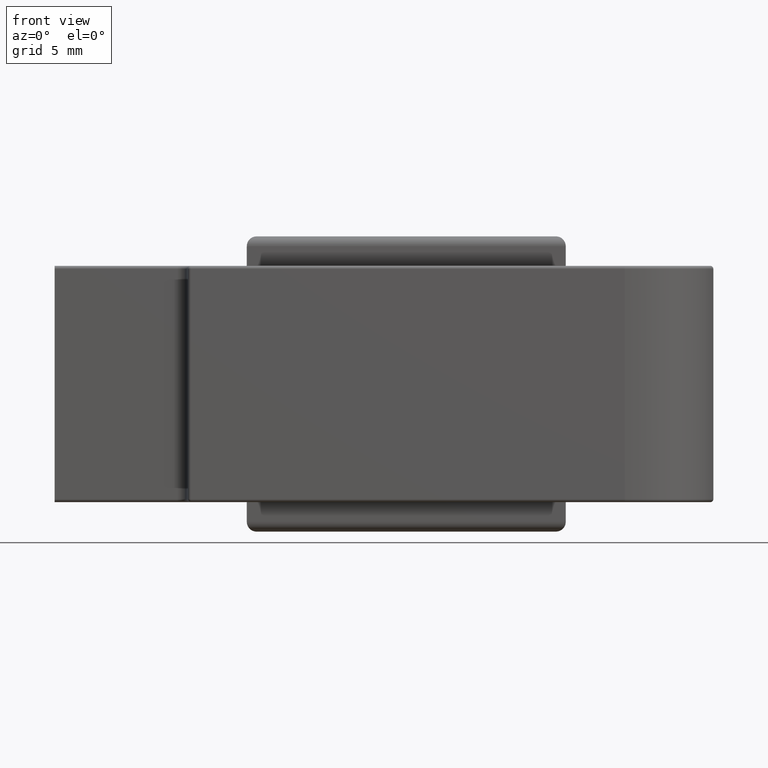
[diagram: clean part render]
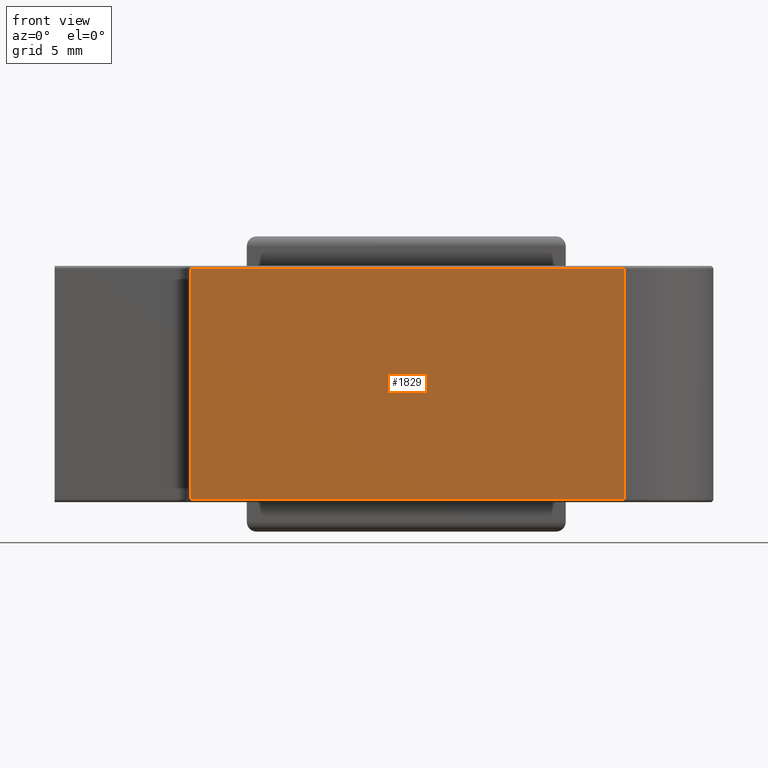
[diagram: same view with one face highlighted and labeled with its STEP entity id]
A machine part, front view. The second image highlights one B-rep face of the part: STEP entity #1829.
In plain terms, the highlighted planar face has unit normal (-0, 1, 0).
Its self-contained STEP definition (entity closure, byte-faithful):
#80 = CARTESIAN_POINT ( 'NONE',  ( 22.20000000000005258, -5.100000000000000533, 11.85000000000000675 ) ) ;
#86 = DIRECTION ( 'NONE',  ( -1.000000000000000000, -9.745637505487650183E-17, -0.000000000000000000 ) ) ;
#167 = ORIENTED_EDGE ( 'NONE', *, *, #1875, .T. ) ;
#177 = EDGE_CURVE ( 'NONE', #2093, #1869, #1537, .T. ) ;
#215 = DIRECTION ( 'NONE',  ( 0.000000000000000000, -6.162975822039132834E-33, -1.000000000000000000 ) ) ;
#275 = CARTESIAN_POINT ( 'NONE',  ( 0.1499999999999765410, -5.100000000000000533, 11.85000000000002629 ) ) ;
#370 = AXIS2_PLACEMENT_3D ( 'NONE', #571, #409, #761 ) ;
#409 = DIRECTION ( 'NONE',  ( -9.745637505487650183E-17, 1.000000000000000000, 0.000000000000000000 ) ) ;
#434 = CARTESIAN_POINT ( 'NONE',  ( 22.20000000000005258, -5.100000000000000533, 0.1499999999999973577 ) ) ;
#571 = CARTESIAN_POINT ( 'NONE',  ( 26.70000000000008455, -5.100000000000000533, 12.00000000000005151 ) ) ;
#609 = LINE ( 'NONE', #1283, #1998 ) ;
#761 = DIRECTION ( 'NONE',  ( -1.000000000000000000, -9.745637505487650183E-17, 0.000000000000000000 ) ) ;
#769 = EDGE_CURVE ( 'NONE', #1869, #1815, #1029, .T. ) ;
#894 = LINE ( 'NONE', #2097, #1907 ) ;
#1002 = FACE_OUTER_BOUND ( 'NONE', #1075, .T. ) ;
#1029 = LINE ( 'NONE', #2081, #2110 ) ;
#1050 = CARTESIAN_POINT ( 'NONE',  ( 0.1499999999999765410, -5.100000000000000533, 12.00000000000003197 ) ) ;
#1075 = EDGE_LOOP ( 'NONE', ( #167, #2200, #1897, #1655 ) ) ;
#1246 = VECTOR ( 'NONE', #215, 1000.000000000000000 ) ;
#1283 = CARTESIAN_POINT ( 'NONE',  ( 26.70000000000008455, -5.100000000000000533, 11.85000000000004761 ) ) ;
#1388 = VERTEX_POINT ( 'NONE', #80 ) ;
#1537 = LINE ( 'NONE', #1050, #1246 ) ;
#1655 = ORIENTED_EDGE ( 'NONE', *, *, #769, .T. ) ;
#1815 = VERTEX_POINT ( 'NONE', #434 ) ;
#1829 = ADVANCED_FACE ( 'NONE', ( #1002 ), #2121, .F. ) ;
#1869 = VERTEX_POINT ( 'NONE', #1953 ) ;
#1875 = EDGE_CURVE ( 'NONE', #1815, #1388, #894, .T. ) ;
#1897 = ORIENTED_EDGE ( 'NONE', *, *, #177, .T. ) ;
#1907 = VECTOR ( 'NONE', #2132, 1000.000000000000000 ) ;
#1913 = DIRECTION ( 'NONE',  ( 1.000000000000000000, 9.745637505487650183E-17, 0.000000000000000000 ) ) ;
#1953 = CARTESIAN_POINT ( 'NONE',  ( 0.1500000000000008271, -5.100000000000000533, 0.1499999999999973577 ) ) ;
#1998 = VECTOR ( 'NONE', #86, 1000.000000000000000 ) ;
#2040 = EDGE_CURVE ( 'NONE', #1388, #2093, #609, .T. ) ;
#2081 = CARTESIAN_POINT ( 'NONE',  ( 22.20000000000005258, -5.100000000000000533, 0.1499999999999973577 ) ) ;
#2093 = VERTEX_POINT ( 'NONE', #275 ) ;
#2097 = CARTESIAN_POINT ( 'NONE',  ( 22.20000000000005258, -5.100000000000000533, 12.00000000000001066 ) ) ;
#2110 = VECTOR ( 'NONE', #1913, 1000.000000000000000 ) ;
#2121 = PLANE ( 'NONE',  #370 ) ;
#2132 = DIRECTION ( 'NONE',  ( -0.000000000000000000, 6.162975822039132834E-33, 1.000000000000000000 ) ) ;
#2200 = ORIENTED_EDGE ( 'NONE', *, *, #2040, .T. ) ;